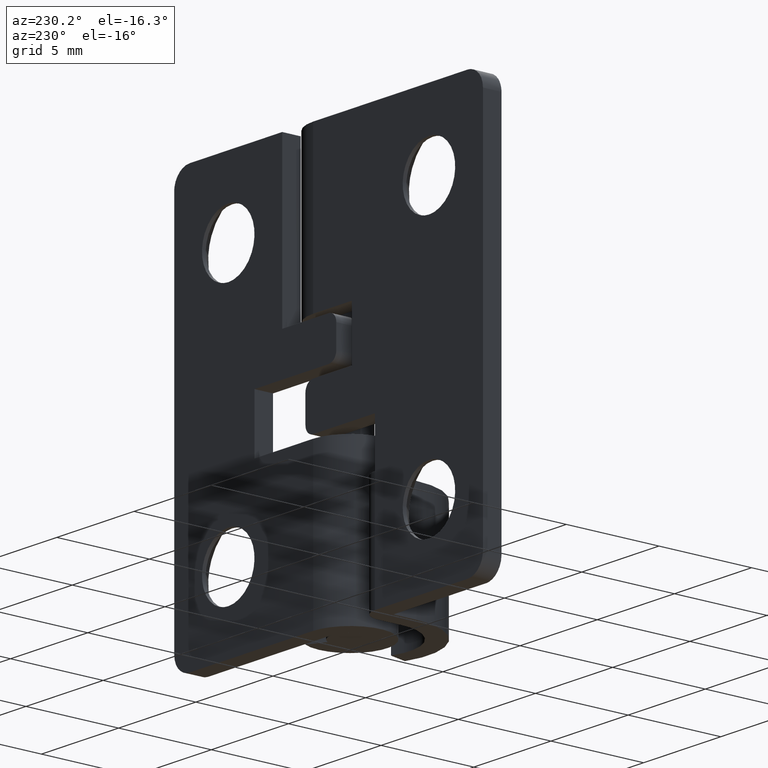
[diagram: clean part render]
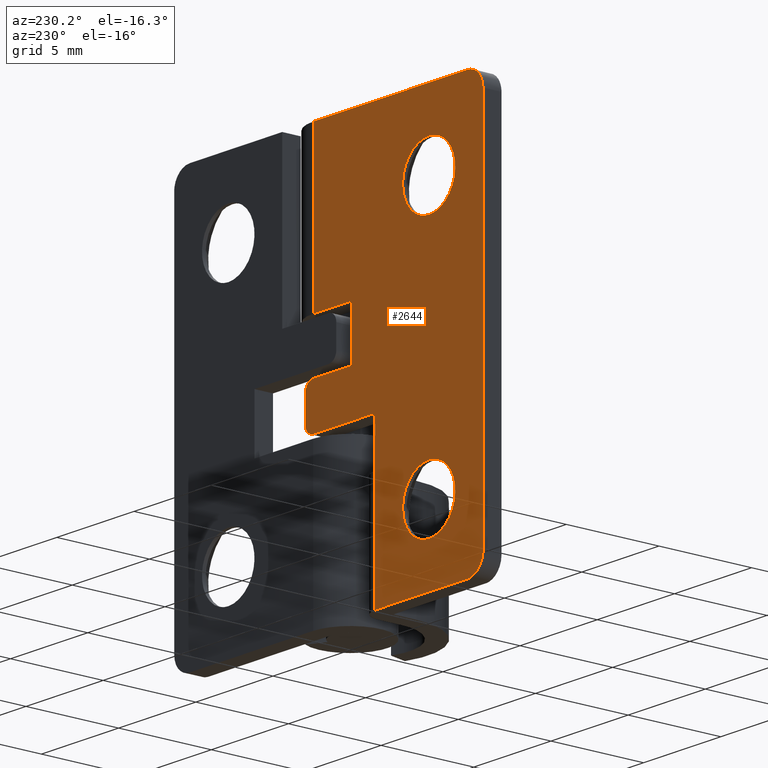
[diagram: same view with one face highlighted and labeled with its STEP entity id]
A machine part, auxiliary view. The second image highlights one B-rep face of the part: STEP entity #2644.
In plain terms, the highlighted face is a freeform B-spline surface patch.
Its self-contained STEP definition (entity closure, byte-faithful):
#1745=CARTESIAN_POINT('',(-5.803170877537437,2.000008000000035,18.103782515295780));
#1746=VERTEX_POINT('',#1745);
#1747=CARTESIAN_POINT('',(-7.499999999999890,2.000008000000035,16.300000034906532));
#1748=VERTEX_POINT('',#1747);
#1749=CARTESIAN_POINT('',(-5.803170877537437,2.000008000000035,18.103782515295784));
#1750=CARTESIAN_POINT('',(-5.800000034906415,2.000008000000036,18.051939696650173));
#1751=CARTESIAN_POINT('',(-5.800000034906415,2.000008000000035,18.0));
#1752=CARTESIAN_POINT('',(-5.800000034906415,2.000008000000036,16.300000034906532));
#1753=CARTESIAN_POINT('',(-7.499999999999890,2.000008000000035,16.300000034906532));
#1761=(BOUNDED_CURVE()B_SPLINE_CURVE(2,(#1749,#1750,#1751,#1752,#1753),.UNSPECIFIED.,.F.,.U.)B_SPLINE_CURVE_WITH_KNOTS((3,2,3),(0.239332962219849,0.250000000000000,0.500000000000000),.UNSPECIFIED.)CURVE()GEOMETRIC_REPRESENTATION_ITEM()RATIONAL_B_SPLINE_CURVE((0.976072041625796,0.987502787877467,1.0,0.707106781186548,1.0))REPRESENTATION_ITEM(''));
#1762=EDGE_CURVE('',#1746,#1748,#1761,.T.);
#1764=CARTESIAN_POINT('',(-9.196829122462342,2.000008000000035,17.896217484704220));
#1765=VERTEX_POINT('',#1764);
#1766=CARTESIAN_POINT('',(-7.499999999999890,2.000008000000035,16.300000034906532));
#1767=CARTESIAN_POINT('',(-9.099200280697408,2.000008000000036,16.300000034906528));
#1768=CARTESIAN_POINT('',(-9.196829122462344,2.000008000000036,17.896217484704227));
#1776=(BOUNDED_CURVE()B_SPLINE_CURVE(2,(#1766,#1767,#1768),.UNSPECIFIED.,.F.,.U.)B_SPLINE_CURVE_WITH_KNOTS((3,3),(0.500000000000000,0.739332962219850),.UNSPECIFIED.)CURVE()GEOMETRIC_REPRESENTATION_ITEM()RATIONAL_B_SPLINE_CURVE((1.0,0.719603993309079,0.976072041625797))REPRESENTATION_ITEM(''));
#1777=EDGE_CURVE('',#1748,#1765,#1776,.T.);
#1844=CARTESIAN_POINT('',(-7.499999999999890,2.000008000000035,19.699999965093468));
#1845=VERTEX_POINT('',#1844);
#1846=CARTESIAN_POINT('',(-7.499999999999890,2.000008000000035,19.699999965093468));
#1847=CARTESIAN_POINT('',(-5.900799719302376,2.000008000000035,19.699999965093479));
#1848=CARTESIAN_POINT('',(-5.803170877537438,2.000008000000035,18.103782515295784));
#1856=(BOUNDED_CURVE()B_SPLINE_CURVE(2,(#1846,#1847,#1848),.UNSPECIFIED.,.F.,.U.)B_SPLINE_CURVE_WITH_KNOTS((3,3),(0.0,0.239332962219849),.UNSPECIFIED.)CURVE()GEOMETRIC_REPRESENTATION_ITEM()RATIONAL_B_SPLINE_CURVE((1.0,0.719603993309080,0.976072041625796))REPRESENTATION_ITEM(''));
#1857=EDGE_CURVE('',#1845,#1746,#1856,.T.);
#1891=CARTESIAN_POINT('',(-9.196829122462344,2.000008000000035,17.896217484704220));
#1892=CARTESIAN_POINT('',(-9.199999965093365,2.000008000000035,17.948060303349827));
#1893=CARTESIAN_POINT('',(-9.199999965093365,2.000008000000035,18.0));
#1894=CARTESIAN_POINT('',(-9.199999965093365,2.000008000000036,19.699999965093465));
#1895=CARTESIAN_POINT('',(-7.499999999999890,2.000008000000035,19.699999965093468));
#1903=(BOUNDED_CURVE()B_SPLINE_CURVE(2,(#1891,#1892,#1893,#1894,#1895),.UNSPECIFIED.,.F.,.U.)B_SPLINE_CURVE_WITH_KNOTS((3,2,3),(0.739332962219849,0.750000000000000,1.0),.UNSPECIFIED.)CURVE()GEOMETRIC_REPRESENTATION_ITEM()RATIONAL_B_SPLINE_CURVE((0.976072041625797,0.987502787877468,1.0,0.707106781186548,1.0))REPRESENTATION_ITEM(''));
#1904=EDGE_CURVE('',#1765,#1845,#1903,.T.);
#2057=CARTESIAN_POINT('',(-5.803170877537438,2.000008000000035,4.103782515295784));
#2058=VERTEX_POINT('',#2057);
#2059=CARTESIAN_POINT('',(-7.499999999999890,2.000008000000035,2.300000034906525));
#2060=VERTEX_POINT('',#2059);
#2061=CARTESIAN_POINT('',(-5.803170877537437,2.000008000000035,4.103782515295784));
#2062=CARTESIAN_POINT('',(-5.800000034906415,2.000008000000035,4.051939696650175));
#2063=CARTESIAN_POINT('',(-5.800000034906415,2.000008000000035,4.0));
#2064=CARTESIAN_POINT('',(-5.800000034906415,2.000008000000036,2.300000034906525));
#2065=CARTESIAN_POINT('',(-7.499999999999890,2.000008000000035,2.300000034906525));
#2073=(BOUNDED_CURVE()B_SPLINE_CURVE(2,(#2061,#2062,#2063,#2064,#2065),.UNSPECIFIED.,.F.,.U.)B_SPLINE_CURVE_WITH_KNOTS((3,2,3),(0.239332962219849,0.250000000000000,0.500000000000000),.UNSPECIFIED.)CURVE()GEOMETRIC_REPRESENTATION_ITEM()RATIONAL_B_SPLINE_CURVE((0.976072041625796,0.987502787877468,1.0,0.707106781186548,1.0))REPRESENTATION_ITEM(''));
#2074=EDGE_CURVE('',#2058,#2060,#2073,.T.);
#2076=CARTESIAN_POINT('',(-9.196829122462340,2.000008000000035,3.896217484704216));
#2077=VERTEX_POINT('',#2076);
#2078=CARTESIAN_POINT('',(-7.499999999999890,2.000008000000035,2.300000034906525));
#2079=CARTESIAN_POINT('',(-9.099200280697405,2.000008000000035,2.300000034906525));
#2080=CARTESIAN_POINT('',(-9.196829122462344,2.000008000000035,3.896217484704216));
#2088=(BOUNDED_CURVE()B_SPLINE_CURVE(2,(#2078,#2079,#2080),.UNSPECIFIED.,.F.,.U.)B_SPLINE_CURVE_WITH_KNOTS((3,3),(0.500000000000000,0.739332962219849),.UNSPECIFIED.)CURVE()GEOMETRIC_REPRESENTATION_ITEM()RATIONAL_B_SPLINE_CURVE((1.0,0.719603993309080,0.976072041625796))REPRESENTATION_ITEM(''));
#2089=EDGE_CURVE('',#2060,#2077,#2088,.T.);
#2156=CARTESIAN_POINT('',(-7.499999999999890,2.000008000000035,5.699999965093475));
#2157=VERTEX_POINT('',#2156);
#2158=CARTESIAN_POINT('',(-7.499999999999890,2.000008000000035,5.699999965093475));
#2159=CARTESIAN_POINT('',(-5.900799719302379,2.000008000000036,5.699999965093475));
#2160=CARTESIAN_POINT('',(-5.803170877537438,2.000008000000035,4.103782515295785));
#2168=(BOUNDED_CURVE()B_SPLINE_CURVE(2,(#2158,#2159,#2160),.UNSPECIFIED.,.F.,.U.)B_SPLINE_CURVE_WITH_KNOTS((3,3),(0.0,0.239332962219849),.UNSPECIFIED.)CURVE()GEOMETRIC_REPRESENTATION_ITEM()RATIONAL_B_SPLINE_CURVE((1.0,0.719603993309080,0.976072041625796))REPRESENTATION_ITEM(''));
#2169=EDGE_CURVE('',#2157,#2058,#2168,.T.);
#2203=CARTESIAN_POINT('',(-9.196829122462344,2.000008000000035,3.896217484704216));
#2204=CARTESIAN_POINT('',(-9.199999965093365,2.000008000000035,3.948060303349824));
#2205=CARTESIAN_POINT('',(-9.199999965093365,2.000008000000035,4.0));
#2206=CARTESIAN_POINT('',(-9.199999965093365,2.000008000000036,5.699999965093475));
#2207=CARTESIAN_POINT('',(-7.499999999999890,2.000008000000035,5.699999965093475));
#2215=(BOUNDED_CURVE()B_SPLINE_CURVE(2,(#2203,#2204,#2205,#2206,#2207),.UNSPECIFIED.,.F.,.U.)B_SPLINE_CURVE_WITH_KNOTS((3,2,3),(0.739332962219849,0.750000000000000,1.0),.UNSPECIFIED.)CURVE()GEOMETRIC_REPRESENTATION_ITEM()RATIONAL_B_SPLINE_CURVE((0.976072041625796,0.987502787877468,1.0,0.707106781186548,1.0))REPRESENTATION_ITEM(''));
#2216=EDGE_CURVE('',#2077,#2157,#2215,.T.);
#2382=CARTESIAN_POINT('',(-0.000006965093348,2.000008000000035,13.699999999999999));
#2383=VERTEX_POINT('',#2382);
#2421=CARTESIAN_POINT('',(-0.000006965093348,2.000008000000035,22.0));
#2422=VERTEX_POINT('',#2421);
#2423=CARTESIAN_POINT('',(-0.000006965093348,2.000008000000035,22.0));
#2424=CARTESIAN_POINT('',(-0.000006965093348,2.000008000000035,13.699999999999999));
#2425=QUASI_UNIFORM_CURVE('',1,(#2423,#2424),.UNSPECIFIED.,.F.,.U.);
#2426=EDGE_CURVE('',#2422,#2383,#2425,.T.);
#2496=CARTESIAN_POINT('',(-11.574424977710770,2.000008000000035,-1.098899957359731));
#2497=CARTESIAN_POINT('',(-11.574424977710770,2.000008000000035,23.098900547445709));
#2498=CARTESIAN_POINT('',(1.074425286164804,2.000008000000035,-1.098899957359731));
#2499=CARTESIAN_POINT('',(1.074425286164804,2.000008000000035,23.098900547445709));
#2500=B_SPLINE_SURFACE_WITH_KNOTS('',1,1,((#2496,#2498),(#2497,#2499)),.UNSPECIFIED.,.F.,.F.,.U.,(2,2),(2,2),(0.0,24.197800504805439),(0.0,12.648850263875570),.UNSPECIFIED.);
#2501=CARTESIAN_POINT('',(-9.999999999999890,2.000008000000035,0.0));
#2502=VERTEX_POINT('',#2501);
#2503=CARTESIAN_POINT('',(-3.999999999995340,2.000008000000035,0.0));
#2504=VERTEX_POINT('',#2503);
#2505=CARTESIAN_POINT('',(-9.999999999999890,2.000008000000035,0.0));
#2506=CARTESIAN_POINT('',(-3.999999999995340,2.000008000000035,0.0));
#2507=QUASI_UNIFORM_CURVE('',1,(#2505,#2506),.UNSPECIFIED.,.F.,.U.);
#2508=EDGE_CURVE('',#2502,#2504,#2507,.T.);
#2509=ORIENTED_EDGE('',*,*,#2508,.F.);
#2510=CARTESIAN_POINT('',(-11.0,2.000008000000035,1.0));
#2511=VERTEX_POINT('',#2510);
#2512=CARTESIAN_POINT('',(-9.999999999999890,2.000008000000035,0.0));
#2513=CARTESIAN_POINT('',(-10.999999999999888,2.000008000000036,0.0));
#2514=CARTESIAN_POINT('',(-10.999999999999890,2.000008000000035,1.0));
#2522=(BOUNDED_CURVE()B_SPLINE_CURVE(2,(#2512,#2513,#2514),.UNSPECIFIED.,.F.,.U.)CURVE()GEOMETRIC_REPRESENTATION_ITEM()QUASI_UNIFORM_CURVE()RATIONAL_B_SPLINE_CURVE((1.0,0.707106781186548,1.0))REPRESENTATION_ITEM(''));
#2523=EDGE_CURVE('',#2502,#2511,#2522,.T.);
#2524=ORIENTED_EDGE('',*,*,#2523,.T.);
#2525=CARTESIAN_POINT('',(-11.0,2.000008000000035,21.0));
#2526=VERTEX_POINT('',#2525);
#2527=CARTESIAN_POINT('',(-11.0,2.000008000000035,21.0));
#2528=CARTESIAN_POINT('',(-11.0,2.000008000000035,1.0));
#2529=QUASI_UNIFORM_CURVE('',1,(#2527,#2528),.UNSPECIFIED.,.F.,.U.);
#2530=EDGE_CURVE('',#2526,#2511,#2529,.T.);
#2531=ORIENTED_EDGE('',*,*,#2530,.F.);
#2532=CARTESIAN_POINT('',(-9.999999999999890,2.000008000000035,22.0));
#2533=VERTEX_POINT('',#2532);
#2534=CARTESIAN_POINT('',(-11.0,2.000008000000035,21.0));
#2535=CARTESIAN_POINT('',(-10.999999999999888,2.000008000000036,22.000000000000007));
#2536=CARTESIAN_POINT('',(-9.999999999999890,2.000008000000035,22.0));
#2544=(BOUNDED_CURVE()B_SPLINE_CURVE(2,(#2534,#2535,#2536),.UNSPECIFIED.,.F.,.U.)CURVE()GEOMETRIC_REPRESENTATION_ITEM()QUASI_UNIFORM_CURVE()RATIONAL_B_SPLINE_CURVE((1.0,0.707106781186548,1.0))REPRESENTATION_ITEM(''));
#2545=EDGE_CURVE('',#2526,#2533,#2544,.T.);
#2546=ORIENTED_EDGE('',*,*,#2545,.T.);
#2547=CARTESIAN_POINT('',(-9.999999999999890,2.000008000000035,22.0));
#2548=CARTESIAN_POINT('',(-0.000006965093348,2.000008000000035,22.0));
#2549=QUASI_UNIFORM_CURVE('',1,(#2547,#2548),.UNSPECIFIED.,.F.,.U.);
#2550=EDGE_CURVE('',#2533,#2422,#2549,.T.);
#2551=ORIENTED_EDGE('',*,*,#2550,.T.);
#2552=ORIENTED_EDGE('',*,*,#2426,.T.);
#2553=CARTESIAN_POINT('',(-2.500000000000000,2.000008000000025,13.699999999999999));
#2554=VERTEX_POINT('',#2553);
#2555=CARTESIAN_POINT('',(-2.500000000000000,2.000008000000025,13.699999999999999));
#2556=CARTESIAN_POINT('',(-0.000006965093348,2.000008000000035,13.699999999999999));
#2557=QUASI_UNIFORM_CURVE('',1,(#2555,#2556),.UNSPECIFIED.,.F.,.U.);
#2558=EDGE_CURVE('',#2554,#2383,#2557,.T.);
#2559=ORIENTED_EDGE('',*,*,#2558,.F.);
#2560=CARTESIAN_POINT('',(-2.500000000000000,2.0,10.903841438560599));
#2561=VERTEX_POINT('',#2560);
#2562=CARTESIAN_POINT('',(-2.500000000000000,2.0,10.903841438560599));
#2563=CARTESIAN_POINT('',(-2.500000000000000,2.000008000000025,13.699999999999999));
#2564=QUASI_UNIFORM_CURVE('',1,(#2562,#2563),.UNSPECIFIED.,.F.,.U.);
#2565=EDGE_CURVE('',#2561,#2554,#2564,.T.);
#2566=ORIENTED_EDGE('',*,*,#2565,.F.);
#2567=CARTESIAN_POINT('',(0.0,2.0,10.903841438560599));
#2568=VERTEX_POINT('',#2567);
#2569=CARTESIAN_POINT('',(-2.500000000000000,2.0,10.903841438560599));
#2570=CARTESIAN_POINT('',(0.0,2.0,10.903841438560599));
#2571=QUASI_UNIFORM_CURVE('',1,(#2569,#2570),.UNSPECIFIED.,.F.,.U.);
#2572=EDGE_CURVE('',#2561,#2568,#2571,.T.);
#2573=ORIENTED_EDGE('',*,*,#2572,.T.);
#2574=CARTESIAN_POINT('',(0.500000000000000,2.0,10.403841438560599));
#2575=VERTEX_POINT('',#2574);
#2576=CARTESIAN_POINT('',(0.0,2.0,10.903841438560599));
#2577=CARTESIAN_POINT('',(0.500000000000000,2.000000000000000,10.903841438560601));
#2578=CARTESIAN_POINT('',(0.500000000000000,2.0,10.403841438560599));
#2586=(BOUNDED_CURVE()B_SPLINE_CURVE(2,(#2576,#2577,#2578),.UNSPECIFIED.,.F.,.U.)CURVE()GEOMETRIC_REPRESENTATION_ITEM()QUASI_UNIFORM_CURVE()RATIONAL_B_SPLINE_CURVE((1.0,0.707106781186548,1.0))REPRESENTATION_ITEM(''));
#2587=EDGE_CURVE('',#2568,#2575,#2586,.T.);
#2588=ORIENTED_EDGE('',*,*,#2587,.T.);
#2589=CARTESIAN_POINT('',(0.500000000000000,2.0,8.999999999999799));
#2590=VERTEX_POINT('',#2589);
#2591=CARTESIAN_POINT('',(0.500000000000000,2.0,10.403841438560599));
#2592=CARTESIAN_POINT('',(0.500000000000000,2.0,8.999999999999799));
#2593=QUASI_UNIFORM_CURVE('',1,(#2591,#2592),.UNSPECIFIED.,.F.,.U.);
#2594=EDGE_CURVE('',#2575,#2590,#2593,.T.);
#2595=ORIENTED_EDGE('',*,*,#2594,.T.);
#2596=CARTESIAN_POINT('',(0.0,2.000008000000035,8.499999999999840));
#2597=VERTEX_POINT('',#2596);
#2598=CARTESIAN_POINT('',(0.500000000000000,2.0,8.999999999999799));
#2599=CARTESIAN_POINT('',(0.500000000000000,2.000004000000017,8.499999999999819));
#2600=CARTESIAN_POINT('',(0.0,2.000008000000035,8.499999999999840));
#2608=(BOUNDED_CURVE()B_SPLINE_CURVE(2,(#2598,#2599,#2600),.UNSPECIFIED.,.F.,.U.)CURVE()GEOMETRIC_REPRESENTATION_ITEM()QUASI_UNIFORM_CURVE()RATIONAL_B_SPLINE_CURVE((1.0,0.707106781186548,1.0))REPRESENTATION_ITEM(''));
#2609=EDGE_CURVE('',#2590,#2597,#2608,.T.);
#2610=ORIENTED_EDGE('',*,*,#2609,.T.);
#2611=CARTESIAN_POINT('',(-3.999999999999901,2.000008000000025,8.499999999999831));
#2612=VERTEX_POINT('',#2611);
#2613=CARTESIAN_POINT('',(-3.999999999999901,2.000008000000025,8.499999999999831));
#2614=CARTESIAN_POINT('',(0.0,2.000008000000035,8.499999999999840));
#2615=QUASI_UNIFORM_CURVE('',1,(#2613,#2614),.UNSPECIFIED.,.F.,.U.);
#2616=EDGE_CURVE('',#2612,#2597,#2615,.T.);
#2617=ORIENTED_EDGE('',*,*,#2616,.F.);
#2618=CARTESIAN_POINT('',(-3.999999999999901,2.000008000000035,6.0));
#2619=VERTEX_POINT('',#2618);
#2620=CARTESIAN_POINT('',(-3.999999999999901,2.000008000000035,6.0));
#2621=CARTESIAN_POINT('',(-3.999999999999901,2.000008000000025,8.499999999999831));
#2622=QUASI_UNIFORM_CURVE('',1,(#2620,#2621),.UNSPECIFIED.,.F.,.U.);
#2623=EDGE_CURVE('',#2619,#2612,#2622,.T.);
#2624=ORIENTED_EDGE('',*,*,#2623,.F.);
#2625=CARTESIAN_POINT('',(-3.999999999999901,2.000008000000035,6.0));
#2626=CARTESIAN_POINT('',(-3.999999999995340,2.000008000000035,0.0));
#2627=QUASI_UNIFORM_CURVE('',1,(#2625,#2626),.UNSPECIFIED.,.F.,.U.);
#2628=EDGE_CURVE('',#2619,#2504,#2627,.T.);
#2629=ORIENTED_EDGE('',*,*,#2628,.T.);
#2630=EDGE_LOOP('',(#2509,#2524,#2531,#2546,#2551,#2552,#2559,#2566,#2573,#2588,#2595,#2610,#2617,#2624,#2629));
#2631=FACE_OUTER_BOUND('',#2630,.T.);
#2632=ORIENTED_EDGE('',*,*,#2089,.F.);
#2633=ORIENTED_EDGE('',*,*,#2074,.F.);
#2634=ORIENTED_EDGE('',*,*,#2169,.F.);
#2635=ORIENTED_EDGE('',*,*,#2216,.F.);
#2636=EDGE_LOOP('',(#2632,#2633,#2634,#2635));
#2637=FACE_BOUND('',#2636,.T.);
#2638=ORIENTED_EDGE('',*,*,#1777,.F.);
#2639=ORIENTED_EDGE('',*,*,#1762,.F.);
#2640=ORIENTED_EDGE('',*,*,#1857,.F.);
#2641=ORIENTED_EDGE('',*,*,#1904,.F.);
#2642=EDGE_LOOP('',(#2638,#2639,#2640,#2641));
#2643=FACE_BOUND('',#2642,.T.);
#2644=ADVANCED_FACE('',(#2631,#2637,#2643),#2500,.T.);